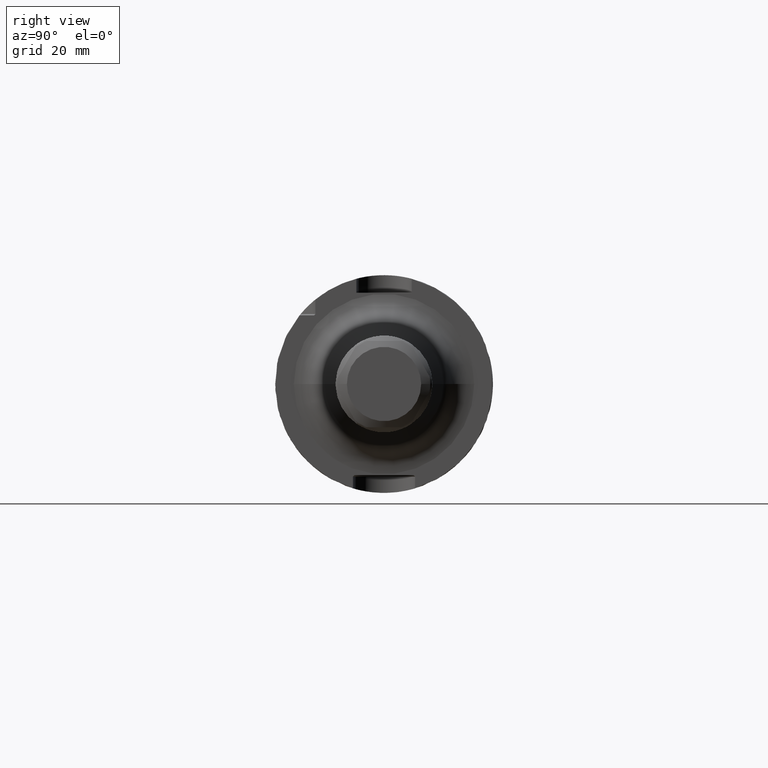
[diagram: clean part render]
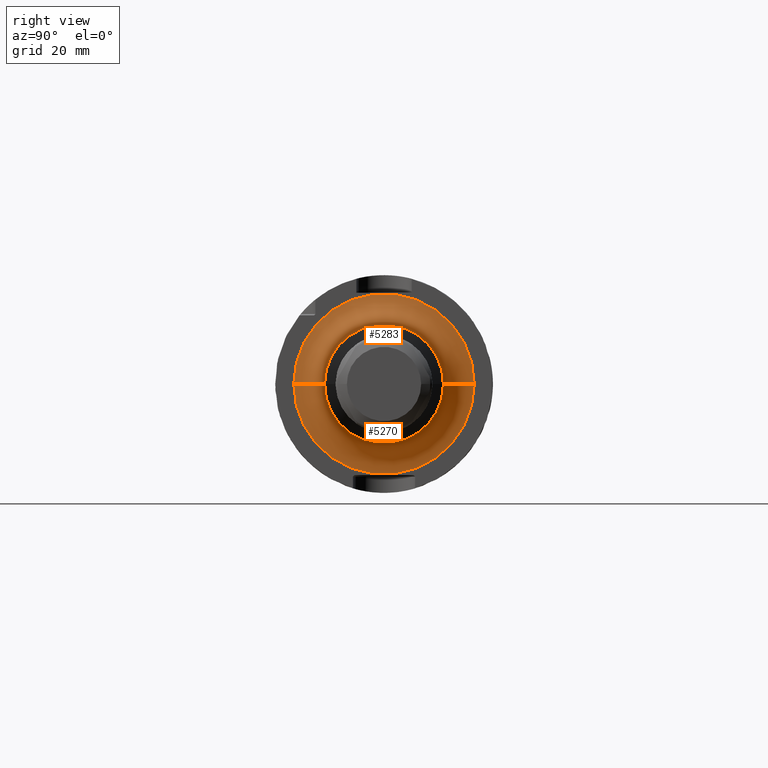
[diagram: same view with one multi-face feature highlighted, each face labeled with its STEP entity id]
A machine part, right view. The highlighted faces form ONE feature: a constant-radius fillet chain: 2 tangent blend faces with common blend radius 9 mm. The faces share edges in the B-rep.
Their STEP definitions:
[1] entity #5270 (Torus):
#1708=CARTESIAN_POINT('',(2.6E1,0.E0,0.E0));
#1709=DIRECTION('',(1.E0,0.E0,0.E0));
#1710=DIRECTION('',(0.E0,-1.E0,0.E0));
#1711=AXIS2_PLACEMENT_3D('',#1708,#1709,#1710);
#1956=CARTESIAN_POINT('',(3.5E1,-2.611688411523E1,1.273620098274E-12));
#1957=DIRECTION('',(0.E0,-4.876654635666E-14,-1.E0));
#1958=DIRECTION('',(-1.E0,0.E0,0.E0));
#1959=AXIS2_PLACEMENT_3D('',#1956,#1957,#1958);
#1961=CARTESIAN_POINT('',(3.5E1,2.611688411523E1,-1.276867500621E-12));
#1962=DIRECTION('',(0.E0,4.889057908519E-14,1.E0));
#1963=DIRECTION('',(-1.E0,0.E0,0.E0));
#1964=AXIS2_PLACEMENT_3D('',#1961,#1962,#1963);
#1971=CARTESIAN_POINT('',(3.378592375367E1,0.E0,0.E0));
#1972=DIRECTION('',(1.E0,0.E0,0.E0));
#1973=DIRECTION('',(0.E0,-1.E0,0.E0));
#1974=AXIS2_PLACEMENT_3D('',#1971,#1972,#1973);
#3168=CARTESIAN_POINT('',(2.6E1,-2.611688411523E1,-2.101138714761E-13));
#3169=CARTESIAN_POINT('',(2.6E1,2.611688411523E1,2.069154756226E-13));
#3170=VERTEX_POINT('',#3168);
#3171=VERTEX_POINT('',#3169);
#3172=CARTESIAN_POINT('',(3.378592375367E1,-1.719914791886E1,0.E0));
#3173=CARTESIAN_POINT('',(3.378592375367E1,1.719914791886E1,0.E0));
#3174=VERTEX_POINT('',#3172);
#3175=VERTEX_POINT('',#3173);
#5256=CARTESIAN_POINT('',(3.5E1,0.E0,0.E0));
#5257=DIRECTION('',(1.E0,0.E0,0.E0));
#5258=DIRECTION('',(0.E0,-9.999870183058E-1,5.095411658756E-3));
#5259=AXIS2_PLACEMENT_3D('',#5256,#5257,#5258);
#5260=TOROIDAL_SURFACE('',#5259,2.611688411523E1,9.E0);
#5261=ORIENTED_EDGE('',*,*,#4963,.F.);
#5263=ORIENTED_EDGE('',*,*,#5262,.T.);
#5265=ORIENTED_EDGE('',*,*,#5264,.T.);
#5267=ORIENTED_EDGE('',*,*,#5266,.F.);
#5268=EDGE_LOOP('',(#5261,#5263,#5265,#5267));
#5269=FACE_OUTER_BOUND('',#5268,.F.);
#5270=ADVANCED_FACE('',(#5269),#5260,.F.);
#1712=CIRCLE('',#1711,2.611688411523E1);
#1960=CIRCLE('',#1959,9.E0);
#1965=CIRCLE('',#1964,9.E0);
#1975=CIRCLE('',#1974,1.719914791886E1);
#4963=EDGE_CURVE('',#3170,#3171,#1712,.T.);
#5262=EDGE_CURVE('',#3170,#3174,#1960,.T.);
#5264=EDGE_CURVE('',#3174,#3175,#1975,.T.);
#5266=EDGE_CURVE('',#3171,#3175,#1965,.T.);
[2] entity #5283 (Torus):
#1713=CARTESIAN_POINT('',(2.6E1,0.E0,0.E0));
#1714=DIRECTION('',(1.E0,0.E0,0.E0));
#1715=DIRECTION('',(0.E0,1.E0,0.E0));
#1716=AXIS2_PLACEMENT_3D('',#1713,#1714,#1715);
#1956=CARTESIAN_POINT('',(3.5E1,-2.611688411523E1,1.273620098274E-12));
#1957=DIRECTION('',(0.E0,-4.876654635666E-14,-1.E0));
#1958=DIRECTION('',(-1.E0,0.E0,0.E0));
#1959=AXIS2_PLACEMENT_3D('',#1956,#1957,#1958);
#1961=CARTESIAN_POINT('',(3.5E1,2.611688411523E1,-1.276867500621E-12));
#1962=DIRECTION('',(0.E0,4.889057908519E-14,1.E0));
#1963=DIRECTION('',(-1.E0,0.E0,0.E0));
#1964=AXIS2_PLACEMENT_3D('',#1961,#1962,#1963);
#1966=CARTESIAN_POINT('',(3.378592375367E1,0.E0,0.E0));
#1967=DIRECTION('',(1.E0,0.E0,0.E0));
#1968=DIRECTION('',(0.E0,1.E0,0.E0));
#1969=AXIS2_PLACEMENT_3D('',#1966,#1967,#1968);
#3168=CARTESIAN_POINT('',(2.6E1,-2.611688411523E1,-2.101138714761E-13));
#3169=CARTESIAN_POINT('',(2.6E1,2.611688411523E1,2.069154756226E-13));
#3170=VERTEX_POINT('',#3168);
#3171=VERTEX_POINT('',#3169);
#3172=CARTESIAN_POINT('',(3.378592375367E1,-1.719914791886E1,0.E0));
#3173=CARTESIAN_POINT('',(3.378592375367E1,1.719914791886E1,0.E0));
#3174=VERTEX_POINT('',#3172);
#3175=VERTEX_POINT('',#3173);
#5271=CARTESIAN_POINT('',(3.5E1,0.E0,0.E0));
#5272=DIRECTION('',(1.E0,0.E0,0.E0));
#5273=DIRECTION('',(0.E0,9.999870183058E-1,-5.095411658756E-3));
#5274=AXIS2_PLACEMENT_3D('',#5271,#5272,#5273);
#5275=TOROIDAL_SURFACE('',#5274,2.611688411523E1,9.E0);
#5276=ORIENTED_EDGE('',*,*,#4965,.F.);
#5277=ORIENTED_EDGE('',*,*,#5266,.T.);
#5279=ORIENTED_EDGE('',*,*,#5278,.T.);
#5280=ORIENTED_EDGE('',*,*,#5262,.F.);
#5281=EDGE_LOOP('',(#5276,#5277,#5279,#5280));
#5282=FACE_OUTER_BOUND('',#5281,.F.);
#5283=ADVANCED_FACE('',(#5282),#5275,.F.);
#1717=CIRCLE('',#1716,2.611688411523E1);
#1960=CIRCLE('',#1959,9.E0);
#1965=CIRCLE('',#1964,9.E0);
#1970=CIRCLE('',#1969,1.719914791886E1);
#4965=EDGE_CURVE('',#3171,#3170,#1717,.T.);
#5262=EDGE_CURVE('',#3170,#3174,#1960,.T.);
#5266=EDGE_CURVE('',#3171,#3175,#1965,.T.);
#5278=EDGE_CURVE('',#3175,#3174,#1970,.T.);